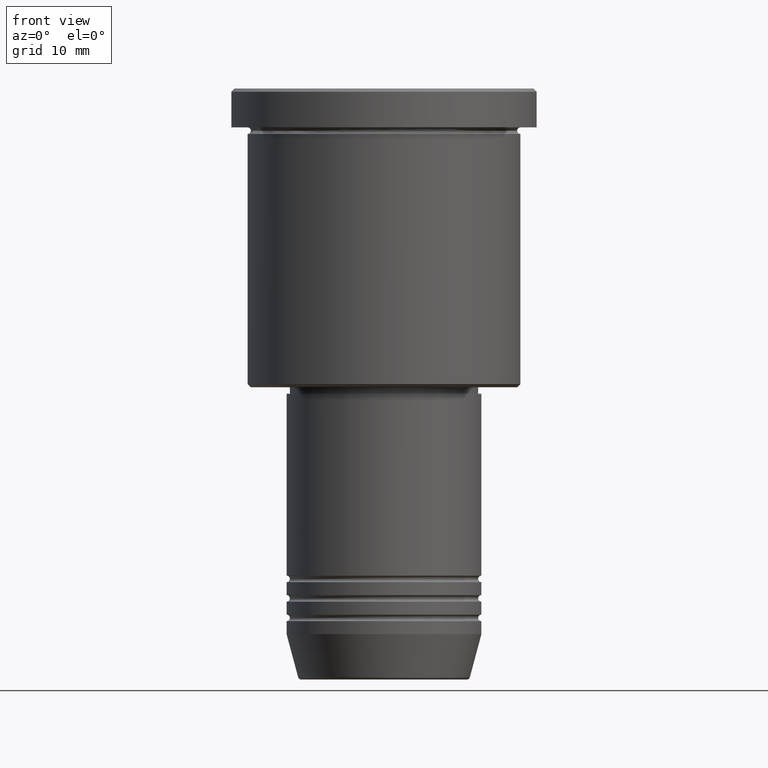
[diagram: clean part render]
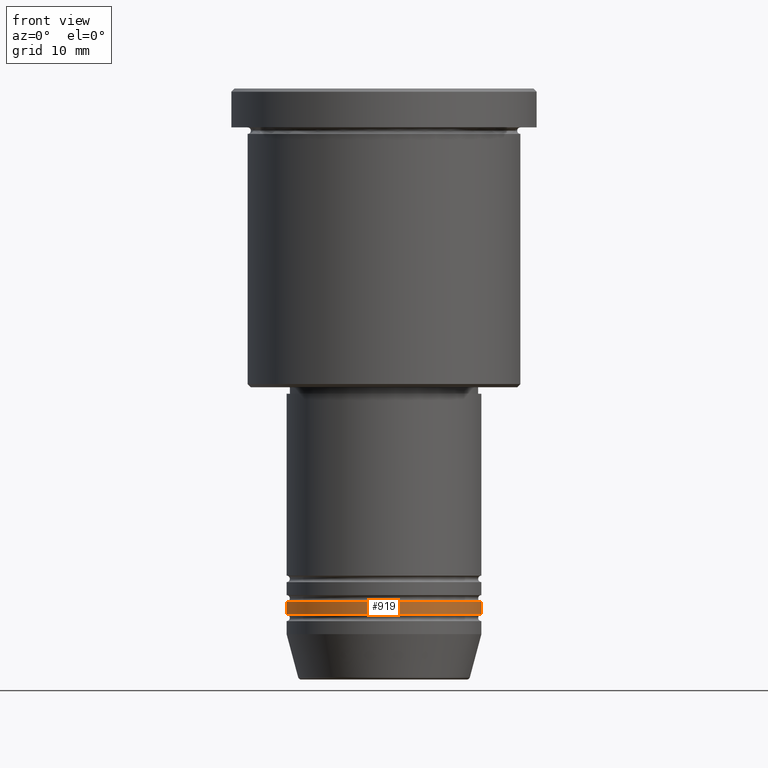
[diagram: same view with one face highlighted and labeled with its STEP entity id]
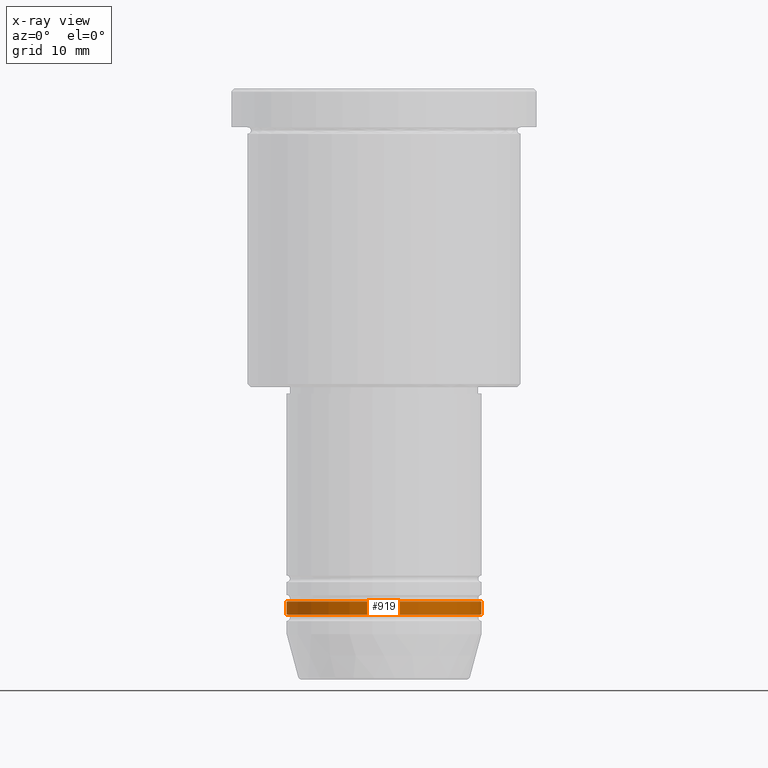
[diagram: x-ray of the same camera — body ghosted, the highlighted face saturated]
A machine part, front view. The second image highlights one B-rep face of the part: STEP entity #919.
The next image is the same camera in x-ray: the body ghosted, the highlighted face saturated — about 0% of this face is hidden behind the body in this view.
In plain terms, the highlighted cylindrical surface (partial cylindrical patch) has radius 15 mm, axis along (-0, -0, 1).
Its self-contained STEP definition (entity closure, byte-faithful):
#3 = AXIS2_PLACEMENT_3D ( 'NONE', #351, #566, #1176 ) ;
#48 = CARTESIAN_POINT ( 'NONE',  ( 0.000000000000000000, 0.000000000000000000, 0.000000000000000000 ) ) ;
#93 = EDGE_CURVE ( 'NONE', #1158, #1099, #1034, .T. ) ;
#97 = DIRECTION ( 'NONE',  ( -0.000000000000000000, -0.000000000000000000, 1.000000000000000000 ) ) ;
#217 = VERTEX_POINT ( 'NONE', #498 ) ;
#274 = EDGE_CURVE ( 'NONE', #1158, #481, #403, .T. ) ;
#281 = CARTESIAN_POINT ( 'NONE',  ( 0.000000000000000000, 0.000000000000000000, -78.99999999999997158 ) ) ;
#306 = CARTESIAN_POINT ( 'NONE',  ( -15.00000000000000000, 1.836970198721029589E-15, 0.000000000000000000 ) ) ;
#307 = ORIENTED_EDGE ( 'NONE', *, *, #93, .T. ) ;
#344 = ORIENTED_EDGE ( 'NONE', *, *, #758, .F. ) ;
#351 = CARTESIAN_POINT ( 'NONE',  ( 0.000000000000000000, 0.000000000000000000, -80.99999999999997158 ) ) ;
#364 = LINE ( 'NONE', #844, #507 ) ;
#403 = LINE ( 'NONE', #306, #752 ) ;
#408 = CYLINDRICAL_SURFACE ( 'NONE', #793, 15.00000000000000000 ) ;
#481 = VERTEX_POINT ( 'NONE', #655 ) ;
#498 = CARTESIAN_POINT ( 'NONE',  ( 15.00000000000000000, 0.000000000000000000, -78.99999999999997158 ) ) ;
#507 = VECTOR ( 'NONE', #916, 1000.000000000000000 ) ;
#529 = CARTESIAN_POINT ( 'NONE',  ( 15.00000000000000000, 0.000000000000000000, -80.99999999999997158 ) ) ;
#566 = DIRECTION ( 'NONE',  ( -0.000000000000000000, -0.000000000000000000, 1.000000000000000000 ) ) ;
#655 = CARTESIAN_POINT ( 'NONE',  ( -15.00000000000000000, 1.836970198721029589E-15, -78.99999999999997158 ) ) ;
#690 = DIRECTION ( 'NONE',  ( -0.000000000000000000, -0.000000000000000000, 1.000000000000000000 ) ) ;
#718 = AXIS2_PLACEMENT_3D ( 'NONE', #281, #97, #745 ) ;
#742 = EDGE_CURVE ( 'NONE', #1099, #217, #364, .T. ) ;
#745 = DIRECTION ( 'NONE',  ( 1.000000000000000000, 0.000000000000000000, 0.000000000000000000 ) ) ;
#752 = VECTOR ( 'NONE', #690, 1000.000000000000000 ) ;
#758 = EDGE_CURVE ( 'NONE', #481, #217, #1129, .T. ) ;
#768 = EDGE_LOOP ( 'NONE', ( #997, #307, #843, #344 ) ) ;
#774 = DIRECTION ( 'NONE',  ( -0.000000000000000000, -0.000000000000000000, 1.000000000000000000 ) ) ;
#793 = AXIS2_PLACEMENT_3D ( 'NONE', #48, #774, #1027 ) ;
#843 = ORIENTED_EDGE ( 'NONE', *, *, #742, .T. ) ;
#844 = CARTESIAN_POINT ( 'NONE',  ( 15.00000000000000000, 0.000000000000000000, 0.000000000000000000 ) ) ;
#880 = CARTESIAN_POINT ( 'NONE',  ( -15.00000000000000000, 1.836970198721029589E-15, -80.99999999999997158 ) ) ;
#916 = DIRECTION ( 'NONE',  ( -0.000000000000000000, -0.000000000000000000, 1.000000000000000000 ) ) ;
#919 = ADVANCED_FACE ( 'NONE', ( #1106 ), #408, .T. ) ;
#997 = ORIENTED_EDGE ( 'NONE', *, *, #274, .F. ) ;
#1027 = DIRECTION ( 'NONE',  ( 1.000000000000000000, 0.000000000000000000, 0.000000000000000000 ) ) ;
#1034 = CIRCLE ( 'NONE', #3, 15.00000000000000000 ) ;
#1099 = VERTEX_POINT ( 'NONE', #529 ) ;
#1106 = FACE_OUTER_BOUND ( 'NONE', #768, .T. ) ;
#1129 = CIRCLE ( 'NONE', #718, 15.00000000000000000 ) ;
#1158 = VERTEX_POINT ( 'NONE', #880 ) ;
#1176 = DIRECTION ( 'NONE',  ( 1.000000000000000000, 0.000000000000000000, 0.000000000000000000 ) ) ;